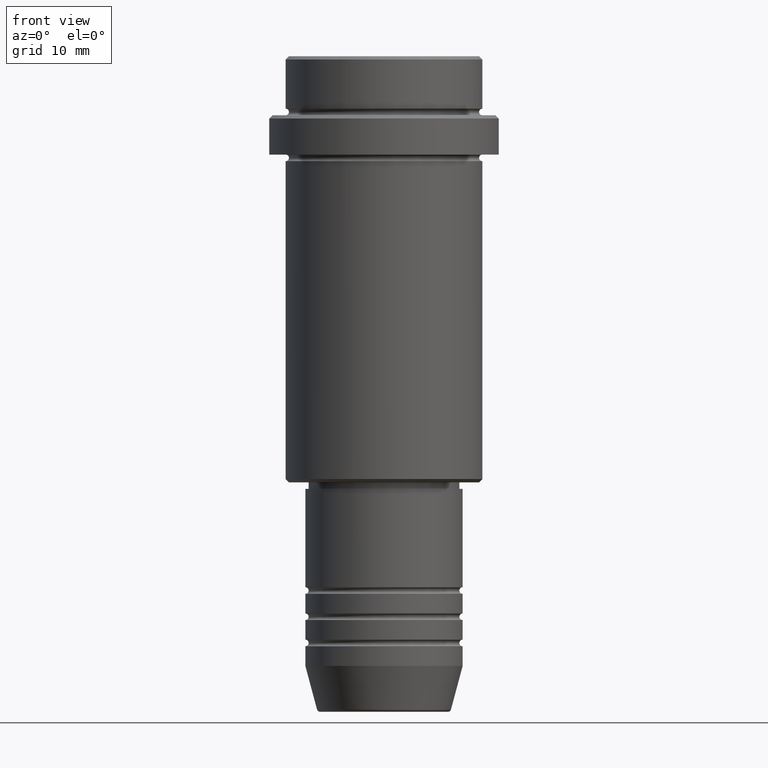
[diagram: clean part render]
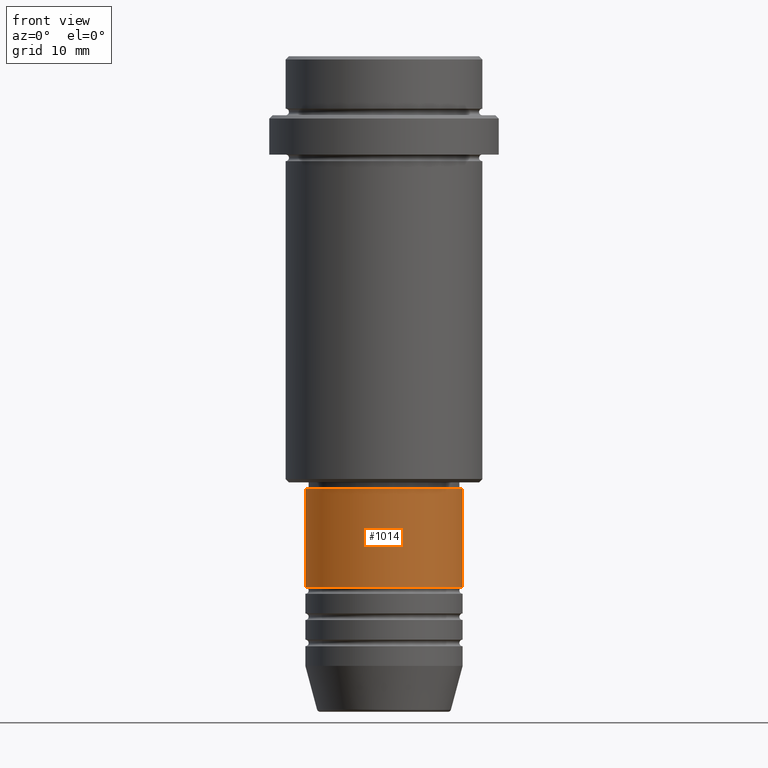
[diagram: same view with one face highlighted and labeled with its STEP entity id]
A machine part, front view. The second image highlights one B-rep face of the part: STEP entity #1014.
In plain terms, the highlighted cylindrical surface (partial cylindrical patch) has radius 12 mm, axis along (-0, -0, 1).
Its self-contained STEP definition (entity closure, byte-faithful):
#45 = EDGE_CURVE ( 'NONE', #877, #561, #722, .T. ) ;
#63 = FACE_OUTER_BOUND ( 'NONE', #672, .T. ) ;
#106 = ORIENTED_EDGE ( 'NONE', *, *, #235, .T. ) ;
#107 = ORIENTED_EDGE ( 'NONE', *, *, #684, .F. ) ;
#126 = CARTESIAN_POINT ( 'NONE',  ( 12.00000000000000000, 0.000000000000000000, -80.99999999999987210 ) ) ;
#142 = ORIENTED_EDGE ( 'NONE', *, *, #966, .T. ) ;
#156 = CARTESIAN_POINT ( 'NONE',  ( -12.00000000000000000, 1.469576158976823947E-15, 0.000000000000000000 ) ) ;
#235 = EDGE_CURVE ( 'NONE', #921, #849, #997, .T. ) ;
#241 = DIRECTION ( 'NONE',  ( 1.000000000000000000, 0.000000000000000000, 0.000000000000000000 ) ) ;
#256 = VECTOR ( 'NONE', #604, 1000.000000000000000 ) ;
#267 = CARTESIAN_POINT ( 'NONE',  ( 0.000000000000000000, 0.000000000000000000, 0.000000000000000000 ) ) ;
#268 = LINE ( 'NONE', #156, #256 ) ;
#394 = LINE ( 'NONE', #1142, #680 ) ;
#484 = AXIS2_PLACEMENT_3D ( 'NONE', #599, #946, #829 ) ;
#561 = VERTEX_POINT ( 'NONE', #626 ) ;
#564 = CARTESIAN_POINT ( 'NONE',  ( 0.000000000000000000, 0.000000000000000000, -66.00000000000000000 ) ) ;
#599 = CARTESIAN_POINT ( 'NONE',  ( 0.000000000000000000, 0.000000000000000000, -80.99999999999987210 ) ) ;
#604 = DIRECTION ( 'NONE',  ( -0.000000000000000000, -0.000000000000000000, 1.000000000000000000 ) ) ;
#626 = CARTESIAN_POINT ( 'NONE',  ( 11.99999999999999822, 0.000000000000000000, -66.00000000000000000 ) ) ;
#651 = AXIS2_PLACEMENT_3D ( 'NONE', #564, #1004, #241 ) ;
#672 = EDGE_LOOP ( 'NONE', ( #107, #106, #142, #1352 ) ) ;
#680 = VECTOR ( 'NONE', #1385, 1000.000000000000000 ) ;
#684 = EDGE_CURVE ( 'NONE', #921, #877, #268, .T. ) ;
#722 = CIRCLE ( 'NONE', #651, 11.99999999999999822 ) ;
#805 = CARTESIAN_POINT ( 'NONE',  ( -12.00000000000000000, 1.469576158976823947E-15, -80.99999999999987210 ) ) ;
#829 = DIRECTION ( 'NONE',  ( 1.000000000000000000, 0.000000000000000000, 0.000000000000000000 ) ) ;
#849 = VERTEX_POINT ( 'NONE', #126 ) ;
#877 = VERTEX_POINT ( 'NONE', #1006 ) ;
#921 = VERTEX_POINT ( 'NONE', #805 ) ;
#946 = DIRECTION ( 'NONE',  ( -0.000000000000000000, -0.000000000000000000, 1.000000000000000000 ) ) ;
#966 = EDGE_CURVE ( 'NONE', #849, #561, #394, .T. ) ;
#997 = CIRCLE ( 'NONE', #484, 12.00000000000000000 ) ;
#1004 = DIRECTION ( 'NONE',  ( -0.000000000000000000, -0.000000000000000000, 1.000000000000000000 ) ) ;
#1006 = CARTESIAN_POINT ( 'NONE',  ( -11.99999999999999822, 1.469576158976823750E-15, -66.00000000000000000 ) ) ;
#1014 = ADVANCED_FACE ( 'NONE', ( #63 ), #1049, .T. ) ;
#1049 = CYLINDRICAL_SURFACE ( 'NONE', #1269, 12.00000000000000000 ) ;
#1142 = CARTESIAN_POINT ( 'NONE',  ( 12.00000000000000000, 0.000000000000000000, 0.000000000000000000 ) ) ;
#1147 = DIRECTION ( 'NONE',  ( 1.000000000000000000, 0.000000000000000000, 0.000000000000000000 ) ) ;
#1260 = DIRECTION ( 'NONE',  ( -0.000000000000000000, -0.000000000000000000, 1.000000000000000000 ) ) ;
#1269 = AXIS2_PLACEMENT_3D ( 'NONE', #267, #1260, #1147 ) ;
#1352 = ORIENTED_EDGE ( 'NONE', *, *, #45, .F. ) ;
#1385 = DIRECTION ( 'NONE',  ( -0.000000000000000000, -0.000000000000000000, 1.000000000000000000 ) ) ;